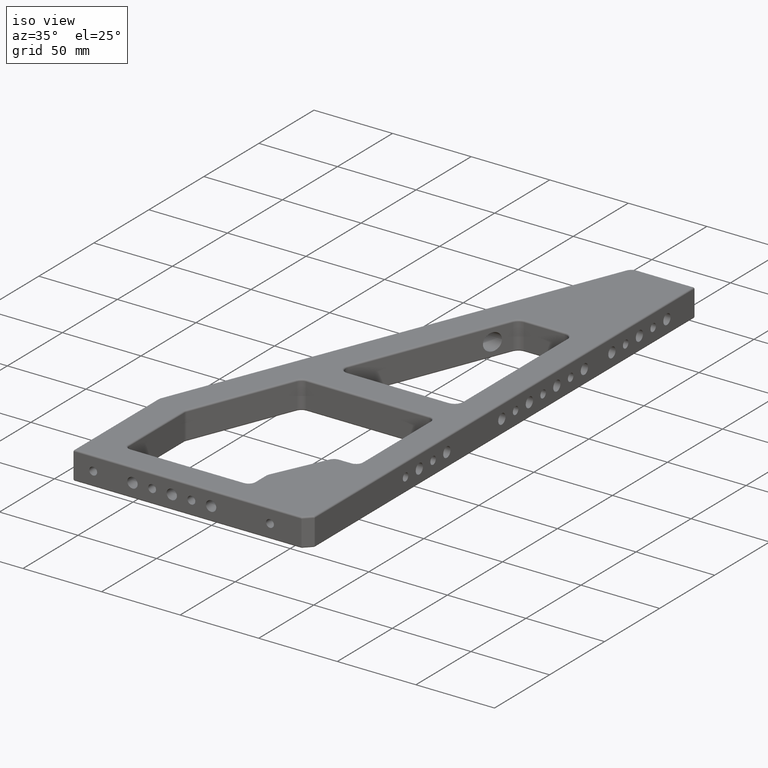
[diagram: clean part render]
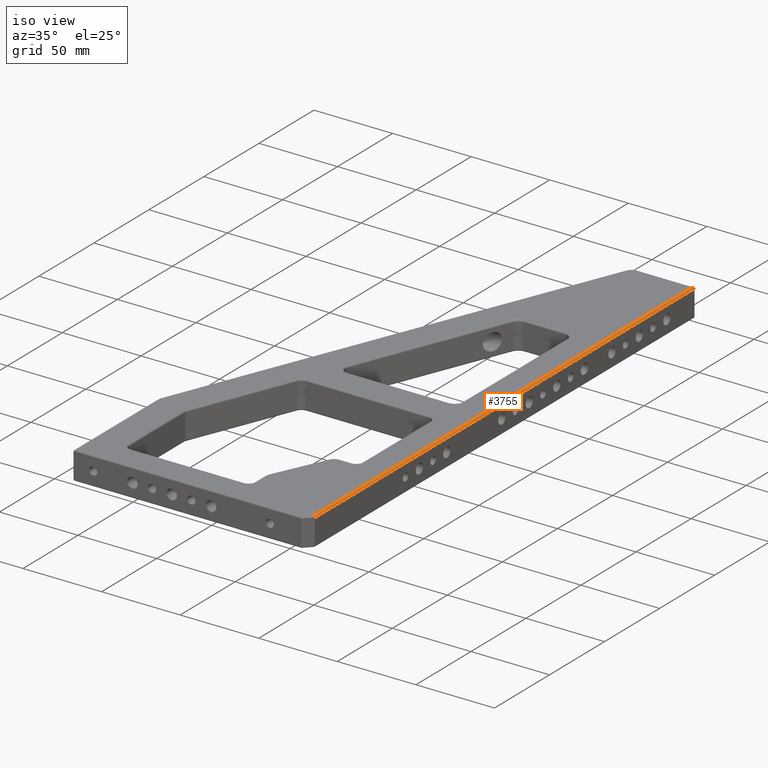
[diagram: same view with one face highlighted and labeled with its STEP entity id]
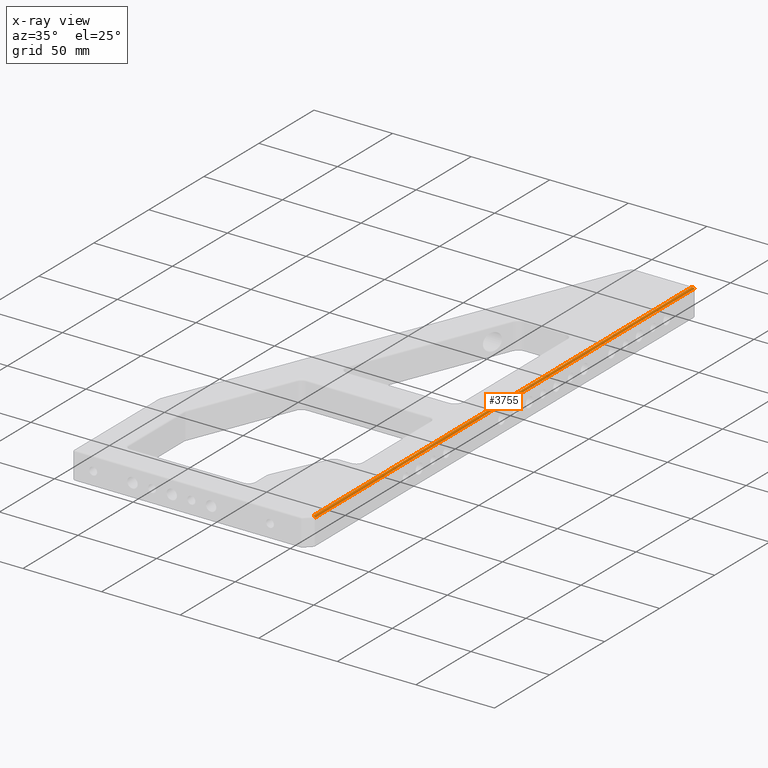
[diagram: x-ray of the same camera — body ghosted, the highlighted face saturated]
A machine part, iso view. The second image highlights one B-rep face of the part: STEP entity #3755.
The next image is the same camera in x-ray: the body ghosted, the highlighted face saturated — about 0% of this face is hidden behind the body in this view.
In plain terms, the highlighted cylindrical surface (edge-blend (fillet) strip) has radius 1 mm, axis along (0, -1, 0).
Its self-contained STEP definition (entity closure, byte-faithful):
#260 = CARTESIAN_POINT ( 'NONE',  ( 149.0000000000000000, 349.0000000000000000, 18.00000000000000000 ) ) ;
#760 = EDGE_CURVE ( 'NONE', #2390, #2864, #3517, .T. ) ;
#1042 = LINE ( 'NONE', #5486, #5909 ) ;
#1110 = VECTOR ( 'NONE', #3155, 1000.000000000000000 ) ;
#1355 = EDGE_LOOP ( 'NONE', ( #5889, #1372, #1961, #4783 ) ) ;
#1372 = ORIENTED_EDGE ( 'NONE', *, *, #3137, .F. ) ;
#1742 = CYLINDRICAL_SURFACE ( 'NONE', #3439, 1.000000000000000900 ) ;
#1961 = ORIENTED_EDGE ( 'NONE', *, *, #4289, .T. ) ;
#2058 = CARTESIAN_POINT ( 'NONE',  ( 149.0000000000000000, 0.0000000000000000000, 16.99999999999999600 ) ) ;
#2291 = CARTESIAN_POINT ( 'NONE',  ( 149.5857864376268900, 5.171572875253808400, 18.00000000000000000 ) ) ;
#2390 = VERTEX_POINT ( 'NONE', #4568 ) ;
#2736 = CARTESIAN_POINT ( 'NONE',  ( 150.0000000000000000, 5.000000000000004400, 16.99999999999999600 ) ) ;
#2864 = VERTEX_POINT ( 'NONE', #260 ) ;
#3022 = CARTESIAN_POINT ( 'NONE',  ( 149.0000000000000000, 349.0000000000000000, 18.00000000000000000 ) ) ;
#3137 = EDGE_CURVE ( 'NONE', #4003, #3437, #1042, .T. ) ;
#3155 = DIRECTION ( 'NONE',  ( 0.0000000000000000000, 1.000000000000000000, -0.0000000000000000000 ) ) ;
#3437 = VERTEX_POINT ( 'NONE', #4525 ) ;
#3439 = AXIS2_PLACEMENT_3D ( 'NONE', #2058, #5261, #3869 ) ;
#3473 = EDGE_CURVE ( 'NONE', #2390, #3437, #5059, .T. ) ;
#3517 = LINE ( 'NONE', #5911, #1110 ) ;
#3755 = ADVANCED_FACE ( 'NONE', ( #4310 ), #1742, .T. ) ;
#3791 =( BOUNDED_CURVE ( )  B_SPLINE_CURVE ( 3, ( #5320, #4866, #5781, #3022 ),
 .UNSPECIFIED., .F., .F. ) 
 B_SPLINE_CURVE_WITH_KNOTS ( ( 4, 4 ),
 ( 0.0000000000000000000, 1.570796326794896600 ),
 .UNSPECIFIED. ) 
 CURVE ( )  GEOMETRIC_REPRESENTATION_ITEM ( )  RATIONAL_B_SPLINE_CURVE ( ( 1.000000000000000000, 0.8047378541243649400, 0.8047378541243649400, 1.000000000000000000 ) ) 
 REPRESENTATION_ITEM ( '' )  );
#3869 = DIRECTION ( 'NONE',  ( 0.0000000000000000000, 0.0000000000000000000, -1.000000000000000000 ) ) ;
#4003 = VERTEX_POINT ( 'NONE', #4654 ) ;
#4289 = EDGE_CURVE ( 'NONE', #4003, #2864, #3791, .T. ) ;
#4310 = FACE_OUTER_BOUND ( 'NONE', #1355, .T. ) ;
#4525 = CARTESIAN_POINT ( 'NONE',  ( 150.0000000000000000, 5.000000000000004400, 16.99999999999999600 ) ) ;
#4568 = CARTESIAN_POINT ( 'NONE',  ( 149.0000000000000000, 5.414213562373094000, 18.00000000000000000 ) ) ;
#4654 = CARTESIAN_POINT ( 'NONE',  ( 150.0000000000000000, 350.0000000000000000, 16.99999999999999600 ) ) ;
#4783 = ORIENTED_EDGE ( 'NONE', *, *, #760, .F. ) ;
#4866 = CARTESIAN_POINT ( 'NONE',  ( 150.0000000000000000, 350.0000000000000000, 17.58578643762690400 ) ) ;
#5039 = DIRECTION ( 'NONE',  ( -0.0000000000000000000, -1.000000000000000000, -0.0000000000000000000 ) ) ;
#5041 = CARTESIAN_POINT ( 'NONE',  ( 149.0000000000000000, 5.414213562373094000, 18.00000000000000000 ) ) ;
#5059 =( BOUNDED_CURVE ( )  B_SPLINE_CURVE ( 3, ( #5041, #2291, #5490, #2736 ),
 .UNSPECIFIED., .F., .F. ) 
 B_SPLINE_CURVE_WITH_KNOTS ( ( 4, 4 ),
 ( 1.570796326794896600, 3.141592653589793100 ),
 .UNSPECIFIED. ) 
 CURVE ( )  GEOMETRIC_REPRESENTATION_ITEM ( )  RATIONAL_B_SPLINE_CURVE ( ( 1.000000000000000000, 0.8047378541243649400, 0.8047378541243649400, 1.000000000000000000 ) ) 
 REPRESENTATION_ITEM ( '' )  );
#5261 = DIRECTION ( 'NONE',  ( 0.0000000000000000000, -1.000000000000000000, 0.0000000000000000000 ) ) ;
#5320 = CARTESIAN_POINT ( 'NONE',  ( 150.0000000000000000, 350.0000000000000000, 16.99999999999999600 ) ) ;
#5486 = CARTESIAN_POINT ( 'NONE',  ( 150.0000000000000000, 5.000000000000004400, 16.99999999999999600 ) ) ;
#5490 = CARTESIAN_POINT ( 'NONE',  ( 150.0000000000000000, 4.999999999999996400, 17.58578643762690400 ) ) ;
#5781 = CARTESIAN_POINT ( 'NONE',  ( 149.5857864376268900, 349.5857864376269500, 18.00000000000000000 ) ) ;
#5889 = ORIENTED_EDGE ( 'NONE', *, *, #3473, .T. ) ;
#5909 = VECTOR ( 'NONE', #5039, 1000.000000000000000 ) ;
#5911 = CARTESIAN_POINT ( 'NONE',  ( 149.0000000000000000, 350.0000000000000000, 18.00000000000000000 ) ) ;